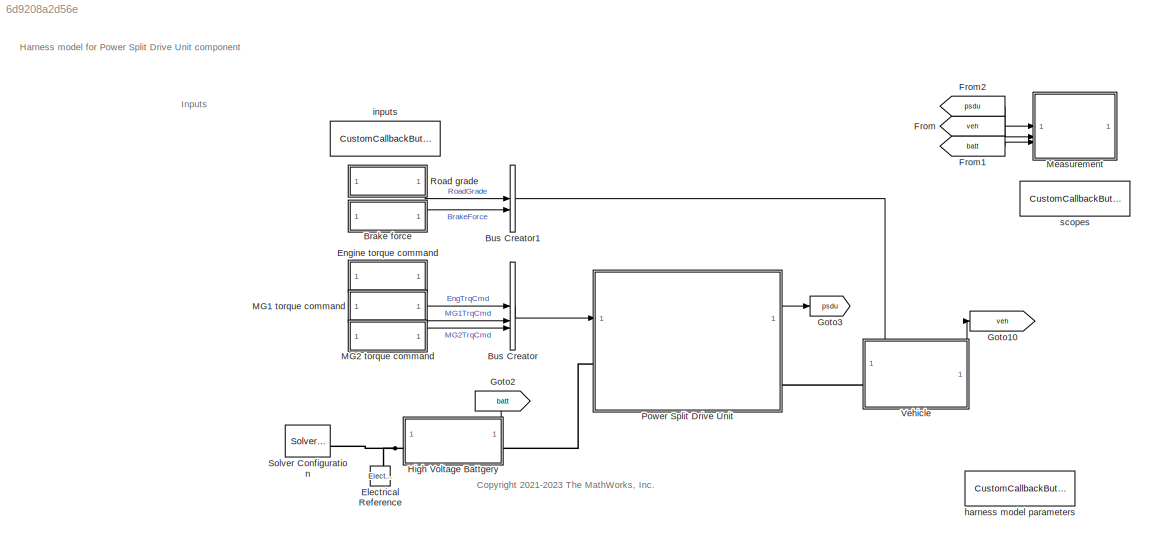
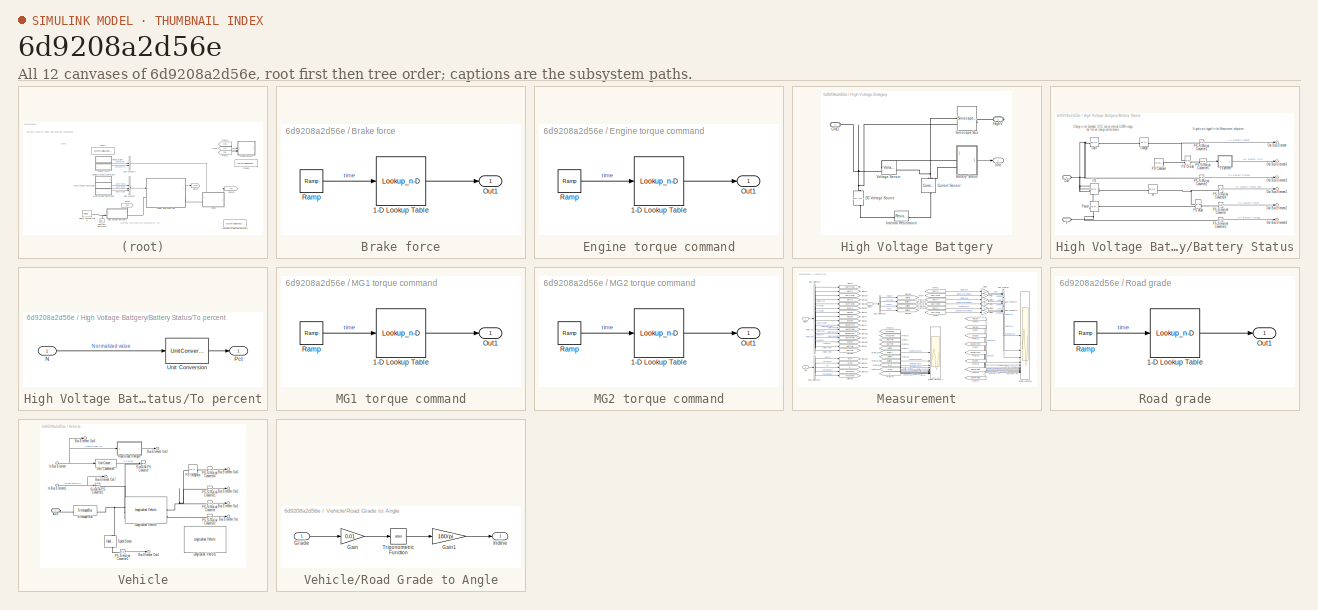
[diagram: thumbnail index - all 12 canvases of the model, root first then tree order]
MODEL mdl_6d9208a2d56e
KIND model
CONFIG AbsTol = 1e-3
CONFIG EnableMultiTasking = off
CONFIG FixedStep = auto
CONFIG MaxStep = auto
CONFIG MinStep = auto
CONFIG PreLoadFcn = PowerSplitDriveUnit_Component_harness_setup\n
CONFIG RelTol = 1e-3
CONFIG SampleTimeConstraint = Unconstrained
CONFIG SolverName = daessc
CONFIG StartTime = 0.0
CONFIG StopTime = 100
BLOCK [SubSystem] Brake force
  NameLocation = left
BLOCK [Lookup_n-D] Brake force/1-D Lookup Table
  BreakpointsForDimension1 = sig.Data.X
  InputPortMap = u0
  InternalRulePriority = Speed
  NumberOfTableDimensions = 1
  RndMeth = Simplest
  Table = sig.Data.Y
BLOCK [Outport] Brake force/Out1
BLOCK [Reference] Brake force/Ramp  REF=simulink/Sources/Ramp
  AttributesFormatString = Slope: %<slope>\nStart time: %<start>\nInitial output: %<InitialOutput>
  SourceBlock = simulink/Sources/Ramp
  SourceType = Ramp
BLOCK [BusCreator] Bus Creator
  DisplayOption = bar
  InheritFromInputs = on
  Inputs = 3
  NameLocation = top
BLOCK [BusCreator] Bus Creator1
  DisplayOption = bar
  InheritFromInputs = on
  Inputs = 2
BLOCK [Reference] Electrical Reference  REF=fl_lib/Electrical/Electrical Elements/Electrical Reference
  SourceBlock = fl_lib/Electrical/Electrical Elements/Electrical Reference
  SourceType = Electrical Reference
BLOCK [SubSystem] Engine torque command
  NameLocation = left
BLOCK [Lookup_n-D] Engine torque command/1-D Lookup Table
  BreakpointsForDimension1 = sig.Data.X
  InputPortMap = u0
  InternalRulePriority = Speed
  NumberOfTableDimensions = 1
  RndMeth = Simplest
  Table = sig.Data.Y
BLOCK [Outport] Engine torque command/Out1
BLOCK [Reference] Engine torque command/Ramp  REF=simulink/Sources/Ramp
  AttributesFormatString = Slope: %<slope>\nStart time: %<start>\nInitial output: %<InitialOutput>
  SourceBlock = simulink/Sources/Ramp
  SourceType = Ramp
BLOCK [From] From
  GotoTag = veh
  NameLocation = left
BLOCK [From] From1
  GotoTag = batt
  NameLocation = left
BLOCK [From] From2
  GotoTag = psdu
  NameLocation = left
BLOCK [Goto] Goto10
  GotoTag = veh
BLOCK [Goto] Goto2
  GotoTag = batt
  NameLocation = top
BLOCK [Goto] Goto3
  GotoTag = psdu
BLOCK [SubSystem] High Voltage Battgery
  PortSchema = {"entries":[{"content":{"sides":[{"content":{"connectorIds":["LConn1"]},"type":"ConnectorPlacement.EquallySpacedRectSide","uuid":"8acd7e9a-bb08-4de6-aa14-0989ebba81b9"},{"content":{"connectorIds":["RConn1"],"side":"RIGHT"},"type":"ConnectorPlacement.EquallySpacedRectSide","uuid":"f80e1afc-966f-4d6b-84f9-f0b60dd6f20c"},{"content":{"connectorIds":["Out1"],"side":"TOP"},"type":"ConnectorPlacement.Equ...<+251ch>
BLOCK [SubSystem] High Voltage Battgery/Battery Status
BLOCK [Reference] High Voltage Battgery/Battery Status/Charge  REF=fl_lib/Physical Signals/Linear Operators/PS Integrator
  AttributesFormatString = %<x0> [%<x0_unit>]
  SourceBlock = fl_lib/Physical Signals/Linear Operators/PS Integrator
  SourceType = PS Integrator
BLOCK [PMIOPort] High Voltage Battgery/Battery Status/Curr
  Port = 2
  Side = Left
BLOCK [Reference] High Voltage Battgery/Battery Status/Gain  REF=fl_lib/Physical Signals/Functions/PS Gain
  AttributesFormatString = %<gain>
  SourceBlock = fl_lib/Physical Signals/Functions/PS Gain
  SourceType = PS Gain
BLOCK [Reference] High Voltage Battgery/Battery Status/I^2  REF=fl_lib/Physical Signals/Functions/PS Product
  SourceBlock = fl_lib/Physical Signals/Functions/PS Product
  SourceType = PS Product
BLOCK [Outport] High Voltage Battgery/Battery Status/Out Bus Element
  AttributesFormatString = %<Unit>
BLOCK [Outport] High Voltage Battgery/Battery Status/Out Bus Element1
  AttributesFormatString = %<Unit>
BLOCK [Outport] High Voltage Battgery/Battery Status/Out Bus Element2
  AttributesFormatString = %<Unit>
BLOCK [Outport] High Voltage Battgery/Battery Status/Out Bus Element3
  AttributesFormatString = %<Unit>
BLOCK [Outport] High Voltage Battgery/Battery Status/Out Bus Element4
  AttributesFormatString = %<Unit>
BLOCK [Outport] High Voltage Battgery/Battery Status/Out Bus Element6
  AttributesFormatString = %<Unit>
BLOCK [Reference] High Voltage Battgery/Battery Status/PS Add  REF=fl_lib/Physical Signals/Functions/PS Add
  SourceBlock = fl_lib/Physical Signals/Functions/PS Add
  SourceType = PS Add
BLOCK [Reference] High Voltage Battgery/Battery Status/PS Constant  REF=fl_lib/Physical Signals/Sources/PS Constant
  AttributesFormatString = %<constant> [%<constant_unit>]
  NameLocation = left
  SourceBlock = fl_lib/Physical Signals/Sources/PS Constant
  SourceType = PS Constant
BLOCK [Reference] High Voltage Battgery/Battery Status/PS Divide  REF=fl_lib/Physical Signals/Functions/PS Divide
  SourceBlock = fl_lib/Physical Signals/Functions/PS Divide
  SourceType = PS Divide
BLOCK [Reference] High Voltage Battgery/Battery Status/PS-Simulink Converter  REF=nesl_utility/PS-Simulink
Converter
  AttributesFormatString = %<Unit>
  SourceBlock = nesl_utility/PS-Simulink\nConverter
  SourceType = PS-Simulink\nConverter
BLOCK [Reference] High Voltage Battgery/Battery Status/PS-Simulink Converter1  REF=nesl_utility/PS-Simulink
Converter
  AttributesFormatString = %<Unit>
  SourceBlock = nesl_utility/PS-Simulink\nConverter
  SourceType = PS-Simulink\nConverter
BLOCK [Reference] High Voltage Battgery/Battery Status/PS-Simulink Converter2  REF=nesl_utility/PS-Simulink
Converter
  AttributesFormatString = %<Unit>
  SourceBlock = nesl_utility/PS-Simulink\nConverter
  SourceType = PS-Simulink\nConverter
BLOCK [Reference] High Voltage Battgery/Battery Status/PS-Simulink Converter3  REF=nesl_utility/PS-Simulink
Converter
  AttributesFormatString = %<Unit>
  SourceBlock = nesl_utility/PS-Simulink\nConverter
  SourceType = PS-Simulink\nConverter
BLOCK [Reference] High Voltage Battgery/Battery Status/PS-Simulink Converter4  REF=nesl_utility/PS-Simulink
Converter
  AttributesFormatString = %<Unit>
  SourceBlock = nesl_utility/PS-Simulink\nConverter
  SourceType = PS-Simulink\nConverter
BLOCK [Reference] High Voltage Battgery/Battery Status/PS-Simulink Converter6  REF=nesl_utility/PS-Simulink
Converter
  AttributesFormatString = %<Unit>
  SourceBlock = nesl_utility/PS-Simulink\nConverter
  SourceType = PS-Simulink\nConverter
BLOCK [Reference] High Voltage Battgery/Battery Status/Power  REF=fl_lib/Physical Signals/Functions/PS Product
  SourceBlock = fl_lib/Physical Signals/Functions/PS Product
  SourceType = PS Product
BLOCK [Reference] High Voltage Battgery/Battery Status/R  REF=fl_lib/Physical Signals/Functions/PS Gain
  AttributesFormatString = %<gain> [%<gain_unit>]
  SourceBlock = fl_lib/Physical Signals/Functions/PS Gain
  SourceType = PS Gain
BLOCK [SubSystem] High Voltage Battgery/Battery Status/To percent
  ShowPortLabels = FromPortBlockName
BLOCK [Inport] High Voltage Battgery/Battery Status/To percent/N
BLOCK [Outport] High Voltage Battgery/Battery Status/To percent/Pct
  AttributesFormatString = %<Unit>
  Unit = %
BLOCK [UnitConversion] High Voltage Battgery/Battery Status/To percent/Unit Conversion
BLOCK [PMIOPort] High Voltage Battgery/Battery Status/V
  Side = Left
BLOCK [Reference] High Voltage Battgery/Current Sensor  REF=fl_lib/Electrical/Electrical Sensors/Current Sensor
  NameLocation = right
  SourceBlock = fl_lib/Electrical/Electrical Sensors/Current Sensor
  SourceType = Current Sensor
BLOCK [Reference] High Voltage Battgery/DC Voltage Source  REF=fl_lib/Electrical/Electrical Sources/DC Voltage Source
  AttributesFormatString = %<v0> [%<v0_unit>]
  NameLocation = right
  SourceBlock = fl_lib/Electrical/Electrical Sources/DC Voltage Source
  SourceType = DC Voltage Source
BLOCK [PMIOPort] High Voltage Battgery/GND
  Side = Left
BLOCK [PMIOPort] High Voltage Battgery/HighV
  Port = 2
  Side = Right
BLOCK [Outport] High Voltage Battgery/Info
BLOCK [Reference] High Voltage Battgery/Internal Resistance  REF=fl_lib/Electrical/Electrical Elements/Resistor
  AttributesFormatString = %<R> [%<R_unit>]
  SourceBlock = fl_lib/Electrical/Electrical Elements/Resistor
  SourceType = Resistor
BLOCK [SimscapeBus] High Voltage Battgery/Simscape Bus
  AttributesFormatString = %<ConnectionType>
  ConnectionType = Bus: Bus_HighVoltage
  HierarchyStrings = Plus;Minus
BLOCK [Reference] High Voltage Battgery/Voltage Sensor  REF=fl_lib/Electrical/Electrical Sensors/Voltage Sensor
  SourceBlock = fl_lib/Electrical/Electrical Sensors/Voltage Sensor
  SourceType = Voltage Sensor
BLOCK [SubSystem] MG1 torque command
  NameLocation = left
BLOCK [Lookup_n-D] MG1 torque command/1-D Lookup Table
  BreakpointsForDimension1 = sig.Data.X
  InputPortMap = u0
  InternalRulePriority = Speed
  NumberOfTableDimensions = 1
  RndMeth = Simplest
  Table = sig.Data.Y
BLOCK [Outport] MG1 torque command/Out1
BLOCK [Reference] MG1 torque command/Ramp  REF=simulink/Sources/Ramp
  AttributesFormatString = Slope: %<slope>\nStart time: %<start>\nInitial output: %<InitialOutput>
  SourceBlock = simulink/Sources/Ramp
  SourceType = Ramp
BLOCK [SubSystem] MG2 torque command
  NameLocation = left
BLOCK [Lookup_n-D] MG2 torque command/1-D Lookup Table
  BreakpointsForDimension1 = sig.Data.X
  InputPortMap = u0
  InternalRulePriority = Speed
  NumberOfTableDimensions = 1
  RndMeth = Simplest
  Table = sig.Data.Y
BLOCK [Outport] MG2 torque command/Out1
BLOCK [Reference] MG2 torque command/Ramp  REF=simulink/Sources/Ramp
  AttributesFormatString = Slope: %<slope>\nStart time: %<start>\nInitial output: %<InitialOutput>
  SourceBlock = simulink/Sources/Ramp
  SourceType = Ramp
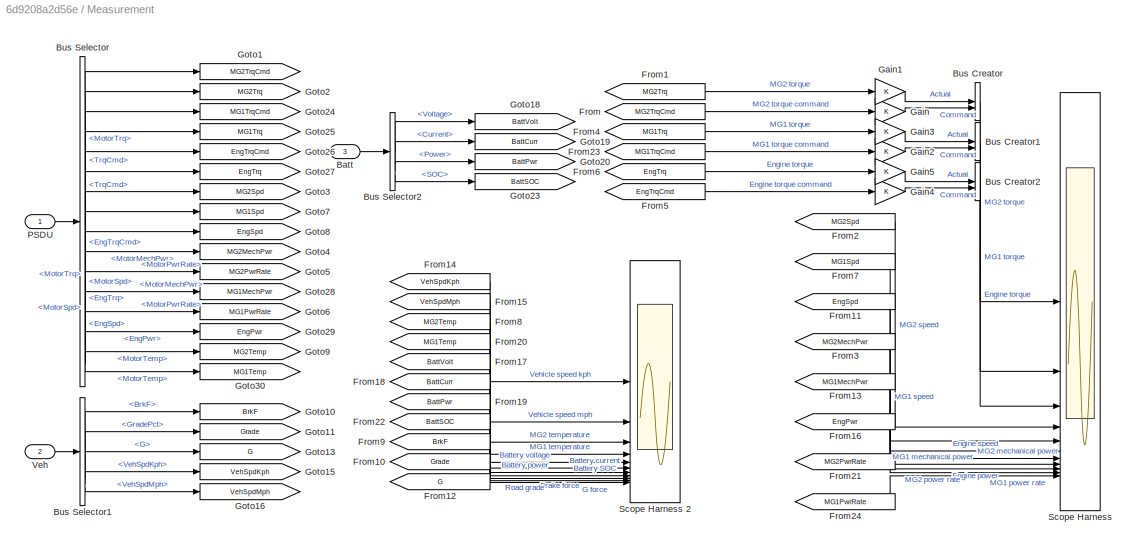
BLOCK [SubSystem] Measurement
BLOCK [Inport] Measurement/Batt
  Port = 3
BLOCK [BusCreator] Measurement/Bus Creator
  DisplayOption = bar
  InheritFromInputs = on
  Inputs = 2
BLOCK [BusCreator] Measurement/Bus Creator1
  DisplayOption = bar
  InheritFromInputs = on
  Inputs = 2
BLOCK [BusCreator] Measurement/Bus Creator2
  DisplayOption = bar
  InheritFromInputs = on
  Inputs = 2
BLOCK [BusSelector] Measurement/Bus Selector
  OutputSignals = mg2.TrqCmd,mg2.MotorTrq,mg1.TrqCmd,mg1.MotorTrq,eng.EngTrqCmd,eng.EngTrq,mg2.MotorSpd,mg1.MotorSpd,eng.EngSpd,mg2.MotorMechPwr,mg2.MotorPwrRate,mg1.MotorMechPwr,mg1.MotorPwrRate,eng.EngPwr,mg2.MotorTemp,mg1.MotorTemp
BLOCK [BusSelector] Measurement/Bus Selector1
  OutputSignals = BrkF,GradePct,G,VehSpdKph,VehSpdMph
BLOCK [BusSelector] Measurement/Bus Selector2
  OutputSignals = Voltage,Current,Power,SOC
BLOCK [From] Measurement/From
  GotoTag = MG2TrqCmd
  NameLocation = left
BLOCK [From] Measurement/From1
  GotoTag = MG2Trq
  NameLocation = left
BLOCK [From] Measurement/From10
  GotoTag = Grade
  NameLocation = left
BLOCK [From] Measurement/From11
  GotoTag = EngSpd
  NameLocation = left
BLOCK [From] Measurement/From12
  GotoTag = G
  NameLocation = left
BLOCK [From] Measurement/From13
  GotoTag = MG1MechPwr
  NameLocation = left
BLOCK [From] Measurement/From14
  GotoTag = VehSpdKph
  NameLocation = left
BLOCK [From] Measurement/From15
  GotoTag = VehSpdMph
  NameLocation = left
BLOCK [From] Measurement/From16
  GotoTag = EngPwr
  NameLocation = left
BLOCK [From] Measurement/From17
  GotoTag = BattVolt
  NameLocation = left
BLOCK [From] Measurement/From18
  GotoTag = BattCurr
  NameLocation = left
BLOCK [From] Measurement/From19
  GotoTag = BattPwr
  NameLocation = left
BLOCK [From] Measurement/From2
  GotoTag = MG2Spd
  NameLocation = left
BLOCK [From] Measurement/From20
  GotoTag = MG1Temp
  NameLocation = left
BLOCK [From] Measurement/From21
  GotoTag = MG2PwrRate
  NameLocation = left
BLOCK [From] Measurement/From22
  GotoTag = BattSOC
  NameLocation = left
BLOCK [From] Measurement/From23
  GotoTag = MG1TrqCmd
  NameLocation = left
BLOCK [From] Measurement/From24
  GotoTag = MG1PwrRate
  NameLocation = left
BLOCK [From] Measurement/From3
  GotoTag = MG2MechPwr
  NameLocation = left
BLOCK [From] Measurement/From4
  GotoTag = MG1Trq
  NameLocation = left
BLOCK [From] Measurement/From5
  GotoTag = EngTrqCmd
  NameLocation = left
BLOCK [From] Measurement/From6
  GotoTag = EngTrq
  NameLocation = left
BLOCK [From] Measurement/From7
  GotoTag = MG1Spd
  NameLocation = left
BLOCK [From] Measurement/From8
  GotoTag = MG2Temp
  NameLocation = left
BLOCK [From] Measurement/From9
  GotoTag = BrkF
  NameLocation = left
BLOCK [Gain] Measurement/Gain
BLOCK [Gain] Measurement/Gain1
BLOCK [Gain] Measurement/Gain2
BLOCK [Gain] Measurement/Gain3
BLOCK [Gain] Measurement/Gain4
BLOCK [Gain] Measurement/Gain5
BLOCK [Goto] Measurement/Goto1
  GotoTag = MG2TrqCmd
  NameLocation = right
BLOCK [Goto] Measurement/Goto10
  GotoTag = BrkF
  NameLocation = right
BLOCK [Goto] Measurement/Goto11
  GotoTag = Grade
  NameLocation = right
BLOCK [Goto] Measurement/Goto13
  GotoTag = G
  NameLocation = right
BLOCK [Goto] Measurement/Goto15
  GotoTag = VehSpdKph
  NameLocation = right
BLOCK [Goto] Measurement/Goto16
  GotoTag = VehSpdMph
  NameLocation = right
BLOCK [Goto] Measurement/Goto18
  GotoTag = BattVolt
  NameLocation = right
BLOCK [Goto] Measurement/Goto19
  GotoTag = BattCurr
  NameLocation = right
BLOCK [Goto] Measurement/Goto2
  GotoTag = MG2Trq
  NameLocation = right
BLOCK [Goto] Measurement/Goto20
  GotoTag = BattPwr
  NameLocation = right
BLOCK [Goto] Measurement/Goto23
  GotoTag = BattSOC
  NameLocation = right
BLOCK [Goto] Measurement/Goto24
  GotoTag = MG1TrqCmd
  NameLocation = right
BLOCK [Goto] Measurement/Goto25
  GotoTag = MG1Trq
  NameLocation = right
BLOCK [Goto] Measurement/Goto26
  GotoTag = EngTrqCmd
  NameLocation = right
BLOCK [Goto] Measurement/Goto27
  GotoTag = EngTrq
  NameLocation = right
BLOCK [Goto] Measurement/Goto28
  GotoTag = MG1MechPwr
  NameLocation = right
BLOCK [Goto] Measurement/Goto29
  GotoTag = EngPwr
  NameLocation = right
BLOCK [Goto] Measurement/Goto3
  GotoTag = MG2Spd
  NameLocation = right
BLOCK [Goto] Measurement/Goto30
  GotoTag = MG1Temp
  NameLocation = right
BLOCK [Goto] Measurement/Goto4
  GotoTag = MG2MechPwr
  NameLocation = right
BLOCK [Goto] Measurement/Goto5
  GotoTag = MG2PwrRate
  NameLocation = right
BLOCK [Goto] Measurement/Goto6
  GotoTag = MG1PwrRate
  NameLocation = right
BLOCK [Goto] Measurement/Goto7
  GotoTag = MG1Spd
  NameLocation = right
BLOCK [Goto] Measurement/Goto8
  GotoTag = EngSpd
  NameLocation = right
BLOCK [Goto] Measurement/Goto9
  GotoTag = MG2Temp
  NameLocation = right
BLOCK [Inport] Measurement/PSDU
BLOCK [Scope] Measurement/Scope Harness
  Floating = off
  NumInputPorts = 11
  ScopeSpecificationString = Simulink.scopes.TimeScopeBlockCfg('CurrentConfiguration', extmgr.ConfigurationSet(extmgr.Configuration('Core','General UI',true),extmgr.Configuration('Core','Source UI',true),extmgr.Configuration('Sources','WiredSimulink',true),extmgr.Configuration('Visuals','Time Domain',true,'SerializedDisplays',{struct('MinYLimReal','-0.000000000000000000000000000000000078','MaxYLimReal','0.00000000000000000000...<+9410ch>
BLOCK [Scope] Measurement/Scope Harness 2
  Floating = off
  NumInputPorts = 11
  ScopeSpecificationString = Simulink.scopes.TimeScopeBlockCfg('CurrentConfiguration', extmgr.ConfigurationSet(extmgr.Configuration('Core','General UI',true),extmgr.Configuration('Core','Source UI',true),extmgr.Configuration('Sources','WiredSimulink',true,'DataLoggingVariableName','ScopeData1'),extmgr.Configuration('Visuals','Time Domain',true,'SerializedDisplays',{struct('MinYLimReal','-4.25683','MaxYLimReal','35.80257','YLa...<+9118ch>
BLOCK [Inport] Measurement/Veh
  Port = 2
BLOCK [SubSystem] Power Split Drive Unit
  ReferencedSubsystem = PowerSplitDriveUnit_refsub_Basic
BLOCK [SubSystem] Road grade
  NameLocation = left
BLOCK [Lookup_n-D] Road grade/1-D Lookup Table
  BreakpointsForDimension1 = sig.Data.X
  InputPortMap = u0
  InternalRulePriority = Speed
  NumberOfTableDimensions = 1
  RndMeth = Simplest
  Table = sig.Data.Y
BLOCK [Outport] Road grade/Out1
BLOCK [Reference] Road grade/Ramp  REF=simulink/Sources/Ramp
  AttributesFormatString = Slope: %<slope>\nStart time: %<start>\nInitial output: %<InitialOutput>
  SourceBlock = simulink/Sources/Ramp
  SourceType = Ramp
BLOCK [Reference] Solver Configuration  REF=nesl_utility/Solver
Configuration
  AttributesFormatString = Local solver %<UseLocalSolver>
  SourceBlock = nesl_utility/Solver\nConfiguration
  SourceType = Solver\nConfiguration
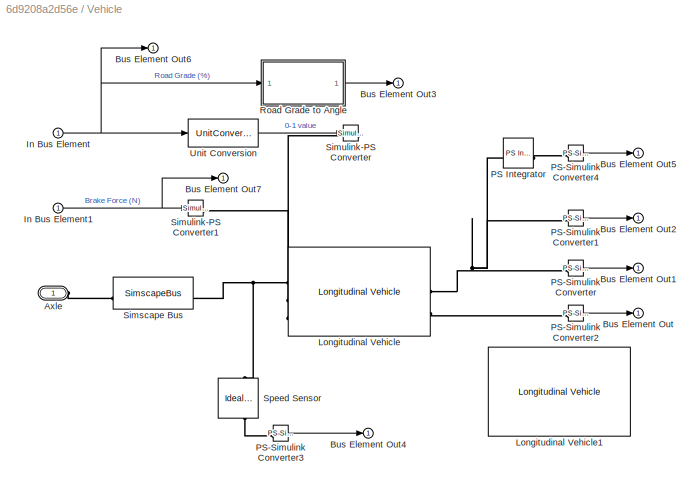
BLOCK [SubSystem] Vehicle
  PortSchema = {"entries":[{"content":{"sides":[{"content":{"connectorIds":["LConn1"]},"type":"ConnectorPlacement.EquallySpacedRectSide","uuid":"26173f4b-7c8a-4f16-9397-bd2703a262c3"},{"content":{"connectorIds":[],"side":"RIGHT"},"type":"ConnectorPlacement.EquallySpacedRectSide","uuid":"c1cca5f5-e160-4db7-9272-a3c788f9ef94"},{"content":{"connectorIds":["In1","Out1"],"side":"TOP"},"type":"ConnectorPlacement.Equal...<+249ch>
BLOCK [PMIOPort] Vehicle/Axle
  Side = Left
BLOCK [Outport] Vehicle/Bus Element Out
  AttributesFormatString = %<Unit>
BLOCK [Outport] Vehicle/Bus Element Out1
  AttributesFormatString = %<Unit>
BLOCK [Outport] Vehicle/Bus Element Out2
  AttributesFormatString = %<Unit>
BLOCK [Outport] Vehicle/Bus Element Out3
  AttributesFormatString = %<Unit>
BLOCK [Outport] Vehicle/Bus Element Out4
  AttributesFormatString = %<Unit>
BLOCK [Outport] Vehicle/Bus Element Out5
  AttributesFormatString = %<Unit>
BLOCK [Outport] Vehicle/Bus Element Out6
  AttributesFormatString = %<Unit>
BLOCK [Outport] Vehicle/Bus Element Out7
  AttributesFormatString = %<Unit>
BLOCK [Inport] Vehicle/In Bus Element
  AttributesFormatString = %<Unit>
BLOCK [Inport] Vehicle/In Bus Element1
  AttributesFormatString = %<Unit>
BLOCK [Reference] Vehicle/Longitudinal Vehicle  REF=sdl_lib/Tires & Vehicles/Longitudinal Vehicle
  AttributesFormatString = %<V_x> [%<V_x_unit>]\nPriority: %<V_x_priority>
  SourceBlock = sdl_lib/Tires & Vehicles/Longitudinal Vehicle
  SourceType = Longitudinal Vehicle
BLOCK [Reference] Vehicle/Longitudinal Vehicle1  REF=sdl_lib/Tires & Vehicles/Longitudinal Vehicle
  AttributesFormatString = %<V_x> [%<V_x_unit>]\nPriority: %<V_x_priority>
  Commented = on
  SourceBlock = sdl_lib/Tires & Vehicles/Longitudinal Vehicle
  SourceType = Longitudinal Vehicle
BLOCK [Reference] Vehicle/PS Integrator  REF=fl_lib/Physical Signals/Linear Operators/PS Integrator
  AttributesFormatString = Initial: %<x0> %<x0_unit>
  SourceBlock = fl_lib/Physical Signals/Linear Operators/PS Integrator
  SourceType = PS Integrator
BLOCK [Reference] Vehicle/PS-Simulink Converter  REF=nesl_utility/PS-Simulink
Converter
  AttributesFormatString = %<Unit>
  SourceBlock = nesl_utility/PS-Simulink\nConverter
  SourceType = PS-Simulink\nConverter
BLOCK [Reference] Vehicle/PS-Simulink Converter1  REF=nesl_utility/PS-Simulink
Converter
  AttributesFormatString = %<Unit>
  SourceBlock = nesl_utility/PS-Simulink\nConverter
  SourceType = PS-Simulink\nConverter
BLOCK [Reference] Vehicle/PS-Simulink Converter2  REF=nesl_utility/PS-Simulink
Converter
  AttributesFormatString = %<Unit>
  SourceBlock = nesl_utility/PS-Simulink\nConverter
  SourceType = PS-Simulink\nConverter
BLOCK [Reference] Vehicle/PS-Simulink Converter3  REF=nesl_utility/PS-Simulink
Converter
  AttributesFormatString = %<Unit>
  SourceBlock = nesl_utility/PS-Simulink\nConverter
  SourceType = PS-Simulink\nConverter
BLOCK [Reference] Vehicle/PS-Simulink Converter4  REF=nesl_utility/PS-Simulink
Converter
  AttributesFormatString = %<Unit>
  SourceBlock = nesl_utility/PS-Simulink\nConverter
  SourceType = PS-Simulink\nConverter
BLOCK [SubSystem] Vehicle/Road Grade to Angle
  NameLocation = top
BLOCK [Gain] Vehicle/Road Grade to Angle/Gain
  Gain = 0.01
BLOCK [Gain] Vehicle/Road Grade to Angle/Gain1
  Gain = 180/pi
BLOCK [Inport] Vehicle/Road Grade to Angle/Grade
  AttributesFormatString = %<Unit>
  NameLocation = left
  Unit = %
BLOCK [Outport] Vehicle/Road Grade to Angle/Incline
  AttributesFormatString = %<Unit>
  NameLocation = right
  Unit = deg
BLOCK [Trigonometry] Vehicle/Road Grade to Angle/Trigonometric Function
  Operator = atan
BLOCK [SimscapeBus] Vehicle/Simscape Bus
  AttributesFormatString = %<ConnectionType>
  ConnectionType = Bus: Bus_Rotational
  HierarchyStrings = AngSpd
BLOCK [Reference] Vehicle/Simulink-PS Converter  REF=nesl_utility/Simulink-PS
Converter
  AttributesFormatString = %<Unit>
  SourceBlock = nesl_utility/Simulink-PS\nConverter
  SourceType = Simulink-PS\nConverter
BLOCK [Reference] Vehicle/Simulink-PS Converter1  REF=nesl_utility/Simulink-PS
Converter
  AttributesFormatString = %<Unit>
  SourceBlock = nesl_utility/Simulink-PS\nConverter
  SourceType = Simulink-PS\nConverter
BLOCK [Reference] Vehicle/Speed Sensor  REF=fl_lib/Mechanical/Mechanical Sensors/Ideal Rotational
Motion Sensor
  NameLocation = right
  SourceBlock = fl_lib/Mechanical/Mechanical Sensors/Ideal Rotational\nMotion Sensor
  SourceType = Ideal Rotational\nMotion Sensor
BLOCK [UnitConversion] Vehicle/Unit Conversion
  OutputType = Inherit: Inherit via back propagation
BLOCK [CustomCallbackButton] harness model parameters
  Configuration = {"components":[{"name":"BackgroundImageComponent","settings":{"image":{"size":[0,0],"src":"default","srcOrientation":"Right"},"position":[0,0,1,1]}},{"name":"ButtonStateComponent","settings":{"buttonType":"momentary","clickFcn":"PowerSplitDriveUnit_Component_resetHarness\n","onValue":1,"position":[0,0,1,1],"pressDelay":"500","pressFcn":"","repeatInterval":"0","states":[{"horizontalAlignment":"cent...<+1767ch>
  CustomBackgroundColor = {"color":[0.9568627451,0.9568627451,0.9568627451],"show":true}
  NameLocation = right
BLOCK [CustomCallbackButton] inputs
  Configuration = {"components":[{"name":"BackgroundImageComponent","settings":{"image":{"size":[0,0],"src":"default","srcOrientation":"Right"},"position":[0,0,1,1]}},{"name":"ButtonStateComponent","settings":{"buttonType":"momentary","clickFcn":"PowerSplitDriveUnit_Component_plotInputs\n","onValue":1,"position":[0,0,1,1],"pressDelay":"500","pressFcn":"","repeatInterval":"0","states":[{"horizontalAlignment":"center...<+1761ch>
  CustomBackgroundColor = {"color":[0.9568627451,0.9568627451,0.9568627451],"show":true}
  NameLocation = right
BLOCK [CustomCallbackButton] scopes
  Configuration = {"components":[{"name":"BackgroundImageComponent","settings":{"image":{"size":[0,0],"src":"default","srcOrientation":"Right"},"position":[0,0,1,1]}},{"name":"ButtonStateComponent","settings":{"buttonType":"momentary","clickFcn":"open_system(bdroot + \"\/Measurement\/Scope Harness 2\")\n\n% Last call appears on top.\nopen_system(bdroot + \"\/Measurement\/Scope Harness\")\n","onValue":1,"position":[...<+2144ch>
  CustomBackgroundColor = {"color":[0.9568627451,0.9568627451,0.9568627451],"show":true}
  NameLocation = right
ANNOTATION (root): <copyright redacted>
ANNOTATION (root): Harness model for Power Split Drive Unit component
ANNOTATION (root): Inputs
ANNOTATION High Voltage Battgery/Battery Status: Charge is not bounded. SOC can go outside 0-100% range, but the net charge can be known.
ANNOTATION High Voltage Battgery/Battery Status: Signals are logged in the Measurement subsystem.
LINE Brake force/1-D Lookup Table:1 -> Brake force/Out1:1
LINE Brake force/Ramp:1 -> Brake force/1-D Lookup Table:1
LINE Brake force:1 -> Bus Creator1:2
LINE Bus Creator1:1 -> Vehicle:1
LINE Bus Creator:1 -> Power Split Drive Unit:1
LINE Engine torque command/1-D Lookup Table:1 -> Engine torque command/Out1:1
LINE Engine torque command/Ramp:1 -> Engine torque command/1-D Lookup Table:1
LINE Engine torque command:1 -> Bus Creator:1
LINE From1:1 -> Measurement:3
LINE From2:1 -> Measurement:1
LINE From:1 -> Measurement:2
LINE High Voltage Battgery/Battery Status/PS-Simulink Converter1:1 -> High Voltage Battgery/Battery Status/Out Bus Element:1
LINE High Voltage Battgery/Battery Status/PS-Simulink Converter2:1 -> High Voltage Battgery/Battery Status/Out Bus Element3:1
LINE High Voltage Battgery/Battery Status/PS-Simulink Converter3:1 -> High Voltage Battgery/Battery Status/Out Bus Element4:1
LINE High Voltage Battgery/Battery Status/PS-Simulink Converter4:1 -> High Voltage Battgery/Battery Status/Out Bus Element1:1
LINE High Voltage Battgery/Battery Status/PS-Simulink Converter6:1 -> High Voltage Battgery/Battery Status/To percent:1
LINE High Voltage Battgery/Battery Status/PS-Simulink Converter:1 -> High Voltage Battgery/Battery Status/Out Bus Element2:1
LINE High Voltage Battgery/Battery Status/To percent/N:1 -> High Voltage Battgery/Battery Status/To percent/Unit Conversion:1
LINE High Voltage Battgery/Battery Status/To percent/Unit Conversion:1 -> High Voltage Battgery/Battery Status/To percent/Pct:1
LINE High Voltage Battgery/Battery Status/To percent:1 -> High Voltage Battgery/Battery Status/Out Bus Element6:1
LINE High Voltage Battgery/Battery Status:1 -> High Voltage Battgery/Info:1
LINE High Voltage Battgery:1 -> Goto2:1
LINE MG1 torque command/1-D Lookup Table:1 -> MG1 torque command/Out1:1
LINE MG1 torque command/Ramp:1 -> MG1 torque command/1-D Lookup Table:1
LINE MG1 torque command:1 -> Bus Creator:2
LINE MG2 torque command/1-D Lookup Table:1 -> MG2 torque command/Out1:1
LINE MG2 torque command/Ramp:1 -> MG2 torque command/1-D Lookup Table:1
LINE MG2 torque command:1 -> Bus Creator:3
LINE Measurement/Batt:1 -> Measurement/Bus Selector2:1
LINE Measurement/Bus Creator1:1 -> Measurement/Scope Harness:2
LINE Measurement/Bus Creator2:1 -> Measurement/Scope Harness:3
LINE Measurement/Bus Creator:1 -> Measurement/Scope Harness:1
LINE Measurement/Bus Selector1:1 -> Measurement/Goto10:1
LINE Measurement/Bus Selector1:2 -> Measurement/Goto11:1
LINE Measurement/Bus Selector1:3 -> Measurement/Goto13:1
LINE Measurement/Bus Selector1:4 -> Measurement/Goto15:1
LINE Measurement/Bus Selector1:5 -> Measurement/Goto16:1
LINE Measurement/Bus Selector2:1 -> Measurement/Goto18:1
LINE Measurement/Bus Selector2:2 -> Measurement/Goto19:1
LINE Measurement/Bus Selector2:3 -> Measurement/Goto20:1
LINE Measurement/Bus Selector2:4 -> Measurement/Goto23:1
LINE Measurement/Bus Selector:1 -> Measurement/Goto1:1
LINE Measurement/Bus Selector:10 -> Measurement/Goto4:1
LINE Measurement/Bus Selector:11 -> Measurement/Goto5:1
LINE Measurement/Bus Selector:12 -> Measurement/Goto28:1
LINE Measurement/Bus Selector:13 -> Measurement/Goto6:1
LINE Measurement/Bus Selector:14 -> Measurement/Goto29:1
LINE Measurement/Bus Selector:15 -> Measurement/Goto9:1
LINE Measurement/Bus Selector:16 -> Measurement/Goto30:1
LINE Measurement/Bus Selector:2 -> Measurement/Goto2:1
LINE Measurement/Bus Selector:3 -> Measurement/Goto24:1
LINE Measurement/Bus Selector:4 -> Measurement/Goto25:1
LINE Measurement/Bus Selector:5 -> Measurement/Goto26:1
LINE Measurement/Bus Selector:6 -> Measurement/Goto27:1
LINE Measurement/Bus Selector:7 -> Measurement/Goto3:1
LINE Measurement/Bus Selector:8 -> Measurement/Goto7:1
LINE Measurement/Bus Selector:9 -> Measurement/Goto8:1
LINE Measurement/From10:1 -> Measurement/Scope Harness 2:10
LINE Measurement/From11:1 -> Measurement/Scope Harness:6
LINE Measurement/From12:1 -> Measurement/Scope Harness 2:11
LINE Measurement/From13:1 -> Measurement/Scope Harness:8
LINE Measurement/From14:1 -> Measurement/Scope Harness 2:1
LINE Measurement/From15:1 -> Measurement/Scope Harness 2:2
LINE Measurement/From16:1 -> Measurement/Scope Harness:9
LINE Measurement/From17:1 -> Measurement/Scope Harness 2:5
LINE Measurement/From18:1 -> Measurement/Scope Harness 2:6
LINE Measurement/From19:1 -> Measurement/Scope Harness 2:7
LINE Measurement/From1:1 -> Measurement/Gain1:1
LINE Measurement/From20:1 -> Measurement/Scope Harness 2:4
LINE Measurement/From21:1 -> Measurement/Scope Harness:10
LINE Measurement/From22:1 -> Measurement/Scope Harness 2:8
LINE Measurement/From23:1 -> Measurement/Gain2:1
LINE Measurement/From24:1 -> Measurement/Scope Harness:11
LINE Measurement/From2:1 -> Measurement/Scope Harness:4
LINE Measurement/From3:1 -> Measurement/Scope Harness:7
LINE Measurement/From4:1 -> Measurement/Gain3:1
LINE Measurement/From5:1 -> Measurement/Gain4:1
LINE Measurement/From6:1 -> Measurement/Gain5:1
LINE Measurement/From7:1 -> Measurement/Scope Harness:5
LINE Measurement/From8:1 -> Measurement/Scope Harness 2:3
LINE Measurement/From9:1 -> Measurement/Scope Harness 2:9
LINE Measurement/From:1 -> Measurement/Gain:1
LINE Measurement/Gain1:1 -> Measurement/Bus Creator:1
LINE Measurement/Gain2:1 -> Measurement/Bus Creator1:2
LINE Measurement/Gain3:1 -> Measurement/Bus Creator1:1
LINE Measurement/Gain4:1 -> Measurement/Bus Creator2:2
LINE Measurement/Gain5:1 -> Measurement/Bus Creator2:1
LINE Measurement/Gain:1 -> Measurement/Bus Creator:2
LINE Measurement/PSDU:1 -> Measurement/Bus Selector:1
LINE Measurement/Veh:1 -> Measurement/Bus Selector1:1
LINE Power Split Drive Unit:1 -> Goto3:1
LINE Road grade/1-D Lookup Table:1 -> Road grade/Out1:1
LINE Road grade/Ramp:1 -> Road grade/1-D Lookup Table:1
LINE Road grade:1 -> Bus Creator1:1
NET Vehicle/In Bus Element1:1 -> Vehicle/Bus Element Out7:1, Vehicle/Simulink-PS Converter1:1
NET Vehicle/In Bus Element:1 -> Vehicle/Bus Element Out6:1, Vehicle/Road Grade to Angle:1, Vehicle/Unit Conversion:1
LINE Vehicle/PS-Simulink Converter1:1 -> Vehicle/Bus Element Out2:1
LINE Vehicle/PS-Simulink Converter2:1 -> Vehicle/Bus Element Out:1
LINE Vehicle/PS-Simulink Converter3:1 -> Vehicle/Bus Element Out4:1
LINE Vehicle/PS-Simulink Converter4:1 -> Vehicle/Bus Element Out5:1
LINE Vehicle/PS-Simulink Converter:1 -> Vehicle/Bus Element Out1:1
LINE Vehicle/Road Grade to Angle/Gain1:1 -> Vehicle/Road Grade to Angle/Incline:1
LINE Vehicle/Road Grade to Angle/Gain:1 -> Vehicle/Road Grade to Angle/Trigonometric Function:1
LINE Vehicle/Road Grade to Angle/Grade:1 -> Vehicle/Road Grade to Angle/Gain:1
LINE Vehicle/Road Grade to Angle/Trigonometric Function:1 -> Vehicle/Road Grade to Angle/Gain1:1
LINE Vehicle/Road Grade to Angle:1 -> Vehicle/Bus Element Out3:1
LINE Vehicle/Unit Conversion:1 -> Vehicle/Simulink-PS Converter:1
LINE Vehicle:1 -> Goto10:1
PNET net1: Electrical Reference:LConn1 -- High Voltage Battgery:LConn1 -- Solver Configuration:RConn1
PLINE High Voltage Battgery/Battery Status/Charge:LConn1 -- High Voltage Battgery/Battery Status/Gain:RConn1
PNET net2: High Voltage Battgery/Battery Status/Charge:RConn1 -- High Voltage Battgery/Battery Status/PS Divide:LConn1 -- High Voltage Battgery/Battery Status/PS-Simulink Converter1:LConn1
PNET net3: High Voltage Battgery/Battery Status/Curr:RConn1 -- High Voltage Battgery/Battery Status/Gain:LConn1 -- High Voltage Battgery/Battery Status/I^2:LConn1 -- High Voltage Battgery/Battery Status/I^2:LConn2 -- High Voltage Battgery/Battery Status/PS-Simulink Converter2:LConn1 -- High Voltage Battgery/Battery Status/Power:LConn2
PLINE High Voltage Battgery/Battery Status/I^2:RConn1 -- High Voltage Battgery/Battery Status/R:LConn1
PNET net4: High Voltage Battgery/Battery Status/PS Add:LConn1 -- High Voltage Battgery/Battery Status/PS-Simulink Converter4:LConn1 -- High Voltage Battgery/Battery Status/R:RConn1
PLINE High Voltage Battgery/Battery Status/PS Add:LConn2 -- High Voltage Battgery/Battery Status/Power:RConn1
PLINE High Voltage Battgery/Battery Status/PS Add:RConn1 -- High Voltage Battgery/Battery Status/PS-Simulink Converter:LConn1
PLINE High Voltage Battgery/Battery Status/PS Constant:RConn1 -- High Voltage Battgery/Battery Status/PS Divide:LConn2
PLINE High Voltage Battgery/Battery Status/PS Divide:RConn1 -- High Voltage Battgery/Battery Status/PS-Simulink Converter6:LConn1
PNET net5: High Voltage Battgery/Battery Status/PS-Simulink Converter3:LConn1 -- High Voltage Battgery/Battery Status/Power:LConn1 -- High Voltage Battgery/Battery Status/V:RConn1
PLINE High Voltage Battgery/Battery Status:LConn1 -- High Voltage Battgery/Voltage Sensor:RConn1
PLINE High Voltage Battgery/Battery Status:LConn2 -- High Voltage Battgery/Current Sensor:RConn1
PLINE High Voltage Battgery/Current Sensor:LConn1 -- High Voltage Battgery/Internal Resistance:RConn1
PNET net6: High Voltage Battgery/Current Sensor:RConn2 -- High Voltage Battgery/Simscape Bus:LConn1 -- High Voltage Battgery/Voltage Sensor:LConn1
PLINE High Voltage Battgery/DC Voltage Source:LConn1 -- High Voltage Battgery/Internal Resistance:LConn1
PNET net7: High Voltage Battgery/DC Voltage Source:RConn1 -- High Voltage Battgery/GND:RConn1 -- High Voltage Battgery/Simscape Bus:LConn2 -- High Voltage Battgery/Voltage Sensor:RConn2
PLINE High Voltage Battgery/HighV:RConn1 -- High Voltage Battgery/Simscape Bus:RConn1
PLINE High Voltage Battgery:RConn1 -- Power Split Drive Unit:LConn1
PLINE Power Split Drive Unit:RConn1 -- Vehicle:LConn1
PLINE Vehicle/Axle:RConn1 -- Vehicle/Simscape Bus:RConn1
PNET net8: Vehicle/Longitudinal Vehicle:LConn1 -- Vehicle/Simscape Bus:LConn1 -- Vehicle/Speed Sensor:LConn1
PLINE Vehicle/Longitudinal Vehicle:LConn2 -- Vehicle/Simulink-PS Converter1:RConn1
PLINE Vehicle/Longitudinal Vehicle:LConn3 -- Vehicle/Simulink-PS Converter:RConn1
PNET net9: Vehicle/Longitudinal Vehicle:RConn1 -- Vehicle/PS Integrator:LConn1 -- Vehicle/PS-Simulink Converter1:LConn1 -- Vehicle/PS-Simulink Converter:LConn1
PLINE Vehicle/Longitudinal Vehicle:RConn2 -- Vehicle/PS-Simulink Converter2:LConn1
PLINE Vehicle/PS Integrator:RConn1 -- Vehicle/PS-Simulink Converter4:LConn1
PLINE Vehicle/PS-Simulink Converter3:LConn1 -- Vehicle/Speed Sensor:RConn1
note: NET lines group one-source signal fan-out (src -> all destinations, sorted); 1:1 wires keep LINE; PNET lines group multi-terminal physical nets as a canonical sorted terminal list (undirected conserving connections); 2-terminal nets keep the pairwise PLINE form
